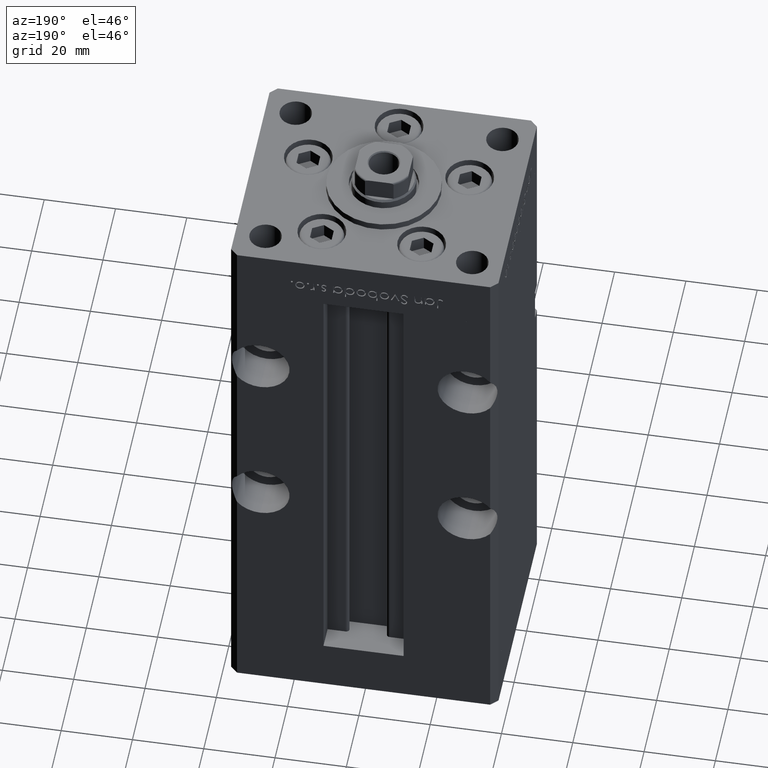
[diagram: clean part render]
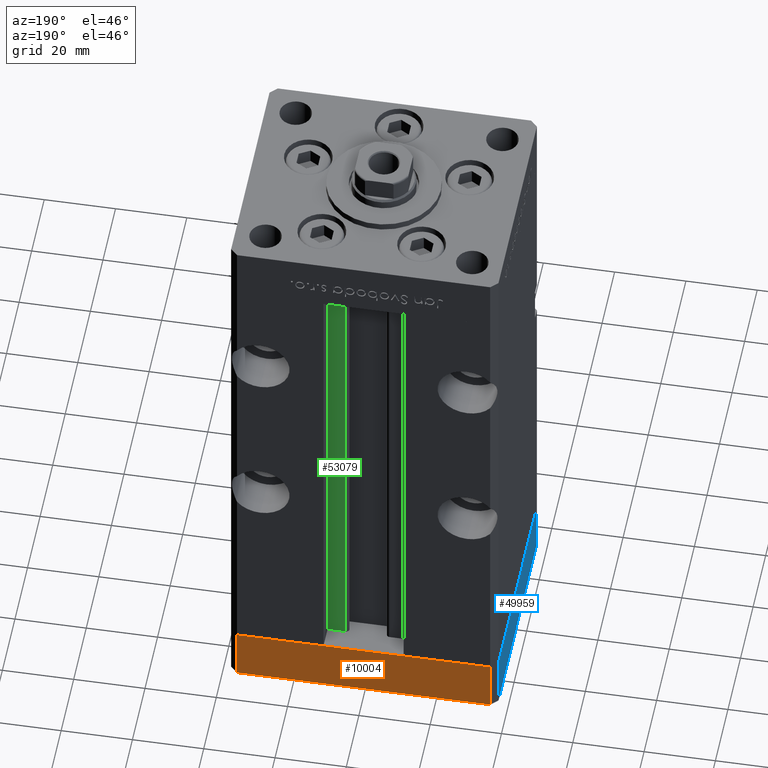
[diagram: same view with three faces highlighted in distinct colors, each labeled with its STEP entity id]
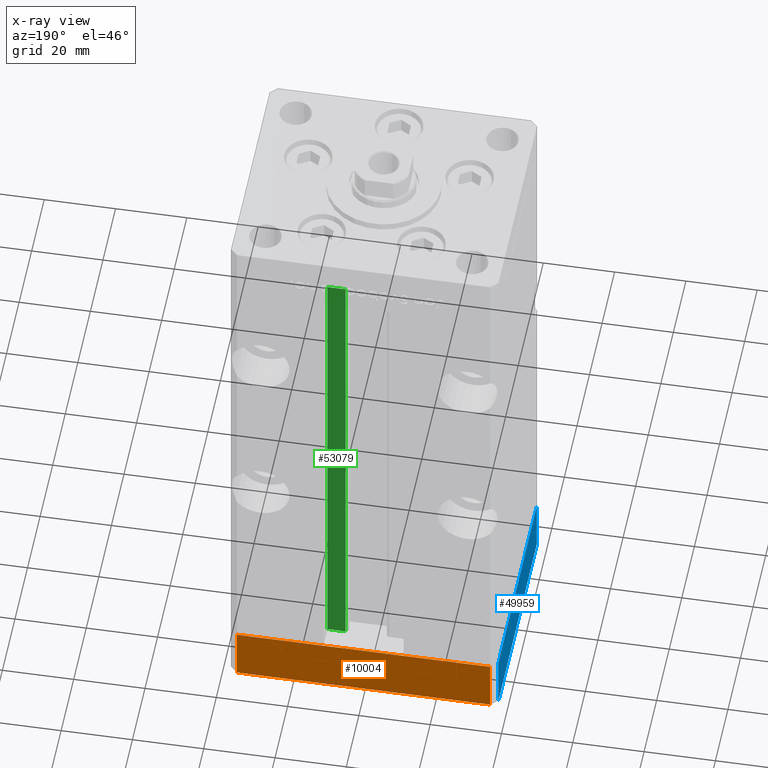
[diagram: x-ray of the same camera — body ghosted, the three highlighted faces saturated]
A machine part, auxiliary view with three faces highlighted in distinct colors.
The next image is the same camera in x-ray (body ghosted, the three faces saturated) — at least one of them is partly hidden behind the body in this view.
Their STEP definitions:

[orange] entity #10004 — the highlighted planar face has unit normal (-0, 1, 0).
#2916 = LINE ( 'NONE', #43238, #50087 ) ;
#2994 = VECTOR ( 'NONE', #8133, 1000.000000000000000 ) ;
#4021 = EDGE_CURVE ( 'NONE', #7933, #27541, #40865, .T. ) ;
#5842 = VERTEX_POINT ( 'NONE', #25037 ) ;
#7933 = VERTEX_POINT ( 'NONE', #30877 ) ;
#8133 = DIRECTION ( 'NONE',  ( 0.000000000000000000, 0.000000000000000000, 1.000000000000000000 ) ) ;
#10004 = ADVANCED_FACE ( 'NONE', ( #29663 ), #29929, .T. ) ;
#11128 = ORIENTED_EDGE ( 'NONE', *, *, #4021, .T. ) ;
#15666 = CARTESIAN_POINT ( 'NONE',  ( -35.50000000000002842, 32.49999999999999289, -15.00000000000000000 ) ) ;
#18142 = CARTESIAN_POINT ( 'NONE',  ( 35.49999999999992184, 32.50000000000000711, -15.00000000000000000 ) ) ;
#19456 = EDGE_CURVE ( 'NONE', #5842, #30856, #2916, .T. ) ;
#19699 = LINE ( 'NONE', #15666, #2994 ) ;
#22303 = AXIS2_PLACEMENT_3D ( 'NONE', #30200, #25372, #38254 ) ;
#25037 = CARTESIAN_POINT ( 'NONE',  ( 35.49999999999992184, 32.50000000000000711, 0.000000000000000000 ) ) ;
#25372 = DIRECTION ( 'NONE',  ( -1.954618001100629052E-16, 1.000000000000000000, 0.000000000000000000 ) ) ;
#27100 = DIRECTION ( 'NONE',  ( -1.000000000000000000, -1.954618001100629052E-16, 0.000000000000000000 ) ) ;
#27541 = VERTEX_POINT ( 'NONE', #32839 ) ;
#28431 = EDGE_CURVE ( 'NONE', #27541, #30856, #19699, .T. ) ;
#29663 = FACE_OUTER_BOUND ( 'NONE', #33121, .T. ) ;
#29929 = PLANE ( 'NONE',  #22303 ) ;
#30200 = CARTESIAN_POINT ( 'NONE',  ( 35.49999999999992184, 32.50000000000000711, -15.00000000000000000 ) ) ;
#30856 = VERTEX_POINT ( 'NONE', #33697 ) ;
#30877 = CARTESIAN_POINT ( 'NONE',  ( 35.49999999999992184, 32.50000000000000711, -15.00000000000000000 ) ) ;
#31024 = LINE ( 'NONE', #18142, #44499 ) ;
#32839 = CARTESIAN_POINT ( 'NONE',  ( -35.50000000000002842, 32.49999999999999289, -15.00000000000000000 ) ) ;
#33121 = EDGE_LOOP ( 'NONE', ( #34082, #46978, #11128, #48321 ) ) ;
#33697 = CARTESIAN_POINT ( 'NONE',  ( -35.50000000000002842, 32.49999999999999289, 0.000000000000000000 ) ) ;
#34082 = ORIENTED_EDGE ( 'NONE', *, *, #19456, .F. ) ;
#38254 = DIRECTION ( 'NONE',  ( -1.000000000000000000, -1.954618001100629052E-16, 0.000000000000000000 ) ) ;
#38571 = VECTOR ( 'NONE', #45164, 1000.000000000000000 ) ;
#40865 = LINE ( 'NONE', #41126, #38571 ) ;
#41126 = CARTESIAN_POINT ( 'NONE',  ( 35.49999999999992184, 32.50000000000000711, -15.00000000000000000 ) ) ;
#43238 = CARTESIAN_POINT ( 'NONE',  ( 35.49999999999992184, 32.50000000000000711, 0.000000000000000000 ) ) ;
#44075 = EDGE_CURVE ( 'NONE', #7933, #5842, #31024, .T. ) ;
#44499 = VECTOR ( 'NONE', #47425, 1000.000000000000000 ) ;
#45164 = DIRECTION ( 'NONE',  ( -1.000000000000000000, -1.954618001100629052E-16, 0.000000000000000000 ) ) ;
#46978 = ORIENTED_EDGE ( 'NONE', *, *, #44075, .F. ) ;
#47425 = DIRECTION ( 'NONE',  ( 0.000000000000000000, 0.000000000000000000, 1.000000000000000000 ) ) ;
#48321 = ORIENTED_EDGE ( 'NONE', *, *, #28431, .T. ) ;
#50087 = VECTOR ( 'NONE', #27100, 1000.000000000000000 ) ;

[blue] entity #49959 — the highlighted planar face has unit normal (-1, -0, 0).
#147 = DIRECTION ( 'NONE',  ( 0.000000000000000000, 0.000000000000000000, 1.000000000000000000 ) ) ;
#648 = DIRECTION ( 'NONE',  ( 0.000000000000000000, 0.000000000000000000, 1.000000000000000000 ) ) ;
#2005 = FACE_OUTER_BOUND ( 'NONE', #6057, .T. ) ;
#3593 = EDGE_CURVE ( 'NONE', #27594, #33307, #5220, .T. ) ;
#5220 = LINE ( 'NONE', #13273, #50553 ) ;
#6057 = EDGE_LOOP ( 'NONE', ( #11568, #11396, #14258, #11658 ) ) ;
#6104 = CARTESIAN_POINT ( 'NONE',  ( 37.50000000000001421, -30.50000000000000711, 0.000000000000000000 ) ) ;
#9291 = VECTOR ( 'NONE', #46432, 1000.000000000000000 ) ;
#10162 = CARTESIAN_POINT ( 'NONE',  ( 37.50000000000001421, -30.50000000000000711, -15.00000000000000000 ) ) ;
#10851 = DIRECTION ( 'NONE',  ( -1.478780668045803018E-15, 1.000000000000000000, 0.000000000000000000 ) ) ;
#11396 = ORIENTED_EDGE ( 'NONE', *, *, #3593, .F. ) ;
#11568 = ORIENTED_EDGE ( 'NONE', *, *, #39921, .F. ) ;
#11658 = ORIENTED_EDGE ( 'NONE', *, *, #21538, .T. ) ;
#12036 = AXIS2_PLACEMENT_3D ( 'NONE', #31283, #43117, #10851 ) ;
#12653 = CARTESIAN_POINT ( 'NONE',  ( 37.50000000000001421, -30.50000000000000711, -15.00000000000000000 ) ) ;
#13273 = CARTESIAN_POINT ( 'NONE',  ( 37.50000000000001421, -30.50000000000000711, -15.00000000000000000 ) ) ;
#14258 = ORIENTED_EDGE ( 'NONE', *, *, #23190, .T. ) ;
#17300 = CARTESIAN_POINT ( 'NONE',  ( 37.49999999999992184, 30.50000000000001066, -15.00000000000000000 ) ) ;
#21146 = VERTEX_POINT ( 'NONE', #53167 ) ;
#21538 = EDGE_CURVE ( 'NONE', #21146, #46313, #30183, .T. ) ;
#23190 = EDGE_CURVE ( 'NONE', #27594, #21146, #46992, .T. ) ;
#27594 = VERTEX_POINT ( 'NONE', #12653 ) ;
#28633 = VECTOR ( 'NONE', #648, 1000.000000000000000 ) ;
#30183 = LINE ( 'NONE', #17300, #28633 ) ;
#31150 = VECTOR ( 'NONE', #35159, 1000.000000000000000 ) ;
#31283 = CARTESIAN_POINT ( 'NONE',  ( 37.50000000000001421, -30.50000000000000711, -15.00000000000000000 ) ) ;
#33307 = VERTEX_POINT ( 'NONE', #49855 ) ;
#35159 = DIRECTION ( 'NONE',  ( -1.478780668045802821E-15, 1.000000000000000000, 0.000000000000000000 ) ) ;
#35322 = PLANE ( 'NONE',  #12036 ) ;
#38353 = LINE ( 'NONE', #6104, #9291 ) ;
#39921 = EDGE_CURVE ( 'NONE', #33307, #46313, #38353, .T. ) ;
#43117 = DIRECTION ( 'NONE',  ( 1.000000000000000000, 1.478780668045803018E-15, -0.000000000000000000 ) ) ;
#46313 = VERTEX_POINT ( 'NONE', #49345 ) ;
#46432 = DIRECTION ( 'NONE',  ( -1.478780668045802821E-15, 1.000000000000000000, 0.000000000000000000 ) ) ;
#46992 = LINE ( 'NONE', #10162, #31150 ) ;
#49345 = CARTESIAN_POINT ( 'NONE',  ( 37.49999999999992184, 30.50000000000001066, 0.000000000000000000 ) ) ;
#49855 = CARTESIAN_POINT ( 'NONE',  ( 37.50000000000001421, -30.50000000000000711, 0.000000000000000000 ) ) ;
#49959 = ADVANCED_FACE ( 'NONE', ( #2005 ), #35322, .T. ) ;
#50553 = VECTOR ( 'NONE', #147, 1000.000000000000000 ) ;
#53167 = CARTESIAN_POINT ( 'NONE',  ( 37.49999999999992184, 30.50000000000001066, -15.00000000000000000 ) ) ;

[green] entity #53079 — the highlighted planar face has unit normal (0, -1, 0).
#133 = CARTESIAN_POINT ( 'NONE',  ( 11.24999999999998046, 26.00000000000000000, 0.000000000000000000 ) ) ;
#1181 = CARTESIAN_POINT ( 'NONE',  ( 6.183333333333980164, 26.00000000000000000, 136.0000000000000000 ) ) ;
#3475 = CARTESIAN_POINT ( 'NONE',  ( 0.000000000000000000, 26.00000000000000000, 136.0000000000000000 ) ) ;
#8478 = DIRECTION ( 'NONE',  ( -0.000000000000000000, -0.000000000000000000, 1.000000000000000000 ) ) ;
#9479 = DIRECTION ( 'NONE',  ( 0.000000000000000000, -0.000000000000000000, -1.000000000000000000 ) ) ;
#9518 = CARTESIAN_POINT ( 'NONE',  ( 11.24999999999998046, 26.00000000000000000, 0.000000000000000000 ) ) ;
#10080 = VERTEX_POINT ( 'NONE', #1181 ) ;
#10516 = EDGE_CURVE ( 'NONE', #47493, #10080, #12110, .T. ) ;
#11894 = EDGE_LOOP ( 'NONE', ( #50084, #48311, #41347, #14568 ) ) ;
#12110 = LINE ( 'NONE', #28231, #52418 ) ;
#13780 = FACE_OUTER_BOUND ( 'NONE', #11894, .T. ) ;
#14568 = ORIENTED_EDGE ( 'NONE', *, *, #50249, .F. ) ;
#14909 = DIRECTION ( 'NONE',  ( 1.000000000000000000, 0.000000000000000000, 0.000000000000000000 ) ) ;
#21537 = VERTEX_POINT ( 'NONE', #49838 ) ;
#23262 = AXIS2_PLACEMENT_3D ( 'NONE', #46310, #29120, #9479 ) ;
#24770 = EDGE_CURVE ( 'NONE', #47493, #30863, #51748, .T. ) ;
#28231 = CARTESIAN_POINT ( 'NONE',  ( 6.183333333333980164, 26.00000000000000000, 0.000000000000000000 ) ) ;
#29120 = DIRECTION ( 'NONE',  ( 0.000000000000000000, -1.000000000000000000, 0.000000000000000000 ) ) ;
#29382 = PLANE ( 'NONE',  #23262 ) ;
#30437 = CARTESIAN_POINT ( 'NONE',  ( 6.183333333333980164, 26.00000000000000000, 0.000000000000000000 ) ) ;
#30863 = VERTEX_POINT ( 'NONE', #133 ) ;
#35713 = LINE ( 'NONE', #3475, #46353 ) ;
#38673 = VECTOR ( 'NONE', #8478, 1000.000000000000000 ) ;
#41347 = ORIENTED_EDGE ( 'NONE', *, *, #10516, .T. ) ;
#42866 = CARTESIAN_POINT ( 'NONE',  ( 6.183333333333980164, 26.00000000000000000, 0.000000000000000000 ) ) ;
#46310 = CARTESIAN_POINT ( 'NONE',  ( 6.183333333333980164, 26.00000000000000000, 0.000000000000000000 ) ) ;
#46353 = VECTOR ( 'NONE', #47815, 1000.000000000000000 ) ;
#47493 = VERTEX_POINT ( 'NONE', #30437 ) ;
#47815 = DIRECTION ( 'NONE',  ( -1.000000000000000000, 0.000000000000000000, 0.000000000000000000 ) ) ;
#48311 = ORIENTED_EDGE ( 'NONE', *, *, #24770, .F. ) ;
#49253 = VECTOR ( 'NONE', #14909, 1000.000000000000000 ) ;
#49456 = DIRECTION ( 'NONE',  ( -0.000000000000000000, -0.000000000000000000, 1.000000000000000000 ) ) ;
#49838 = CARTESIAN_POINT ( 'NONE',  ( 11.24999999999998046, 26.00000000000000000, 136.0000000000000000 ) ) ;
#50084 = ORIENTED_EDGE ( 'NONE', *, *, #51188, .F. ) ;
#50249 = EDGE_CURVE ( 'NONE', #21537, #10080, #35713, .T. ) ;
#51188 = EDGE_CURVE ( 'NONE', #30863, #21537, #52871, .T. ) ;
#51748 = LINE ( 'NONE', #42866, #49253 ) ;
#52418 = VECTOR ( 'NONE', #49456, 1000.000000000000000 ) ;
#52871 = LINE ( 'NONE', #9518, #38673 ) ;
#53079 = ADVANCED_FACE ( 'NONE', ( #13780 ), #29382, .F. ) ;